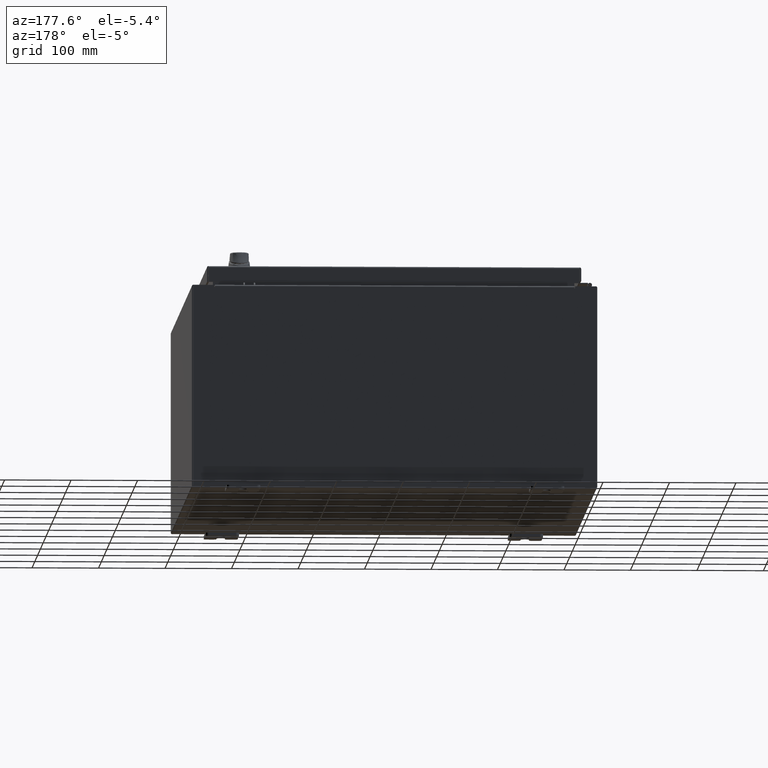
[diagram: clean part render]
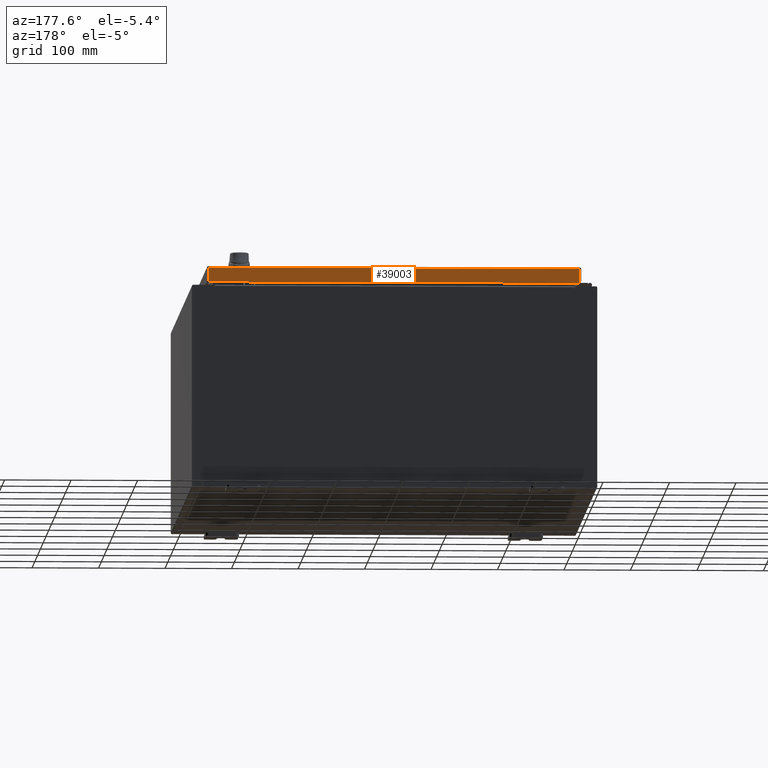
[diagram: same view with one face highlighted and labeled with its STEP entity id]
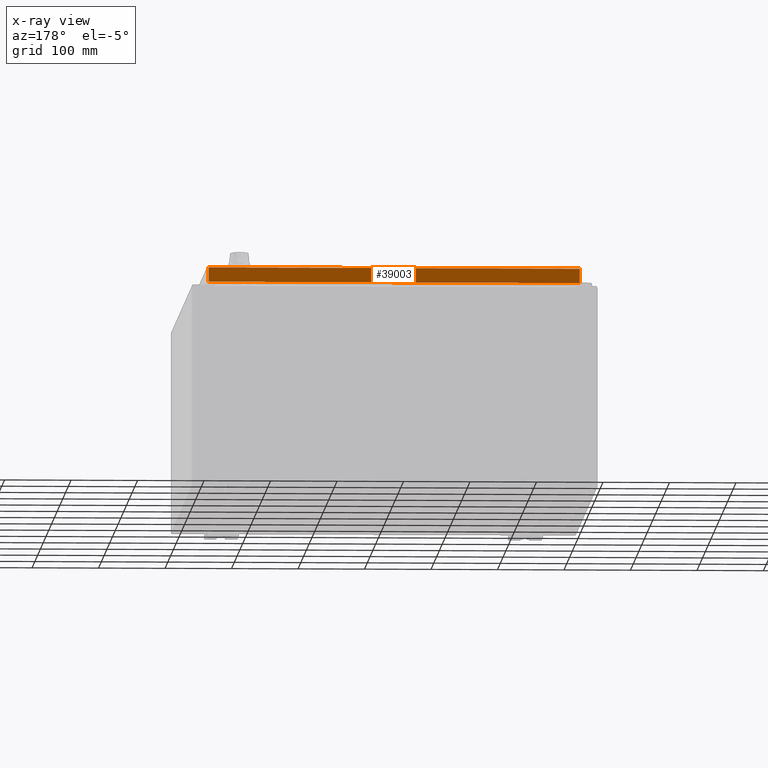
[diagram: x-ray of the same camera — body ghosted, the highlighted face saturated]
A machine part, auxiliary view. The second image highlights one B-rep face of the part: STEP entity #39003.
The next image is the same camera in x-ray: the body ghosted, the highlighted face saturated — about 0% of this face is hidden behind the body in this view.
In plain terms, the highlighted planar face has unit normal (0, -1, -0).
Its self-contained STEP definition (entity closure, byte-faithful):
#5840 = AXIS2_PLACEMENT_3D ( 'NONE', #42341, #69610, #15412 ) ;
#9617 = CARTESIAN_POINT ( 'NONE',  ( 10.98915786437626700, 14.09399999999999900, -0.08770000000000008300 ) ) ;
#10952 = EDGE_CURVE ( 'NONE', #12809, #40409, #18586, .T. ) ;
#12809 = VERTEX_POINT ( 'NONE', #9617 ) ;
#15412 = DIRECTION ( 'NONE',  ( 0.0000000000000000000, 2.532419924601858200E-015, -1.000000000000000000 ) ) ;
#15917 = CARTESIAN_POINT ( 'NONE',  ( -10.98915786437626700, 14.09399999999999900, -0.08770000000000008300 ) ) ;
#16169 = ORIENTED_EDGE ( 'NONE', *, *, #60332, .F. ) ;
#16761 = VECTOR ( 'NONE', #113386, 39.37007874015748100 ) ;
#18586 = LINE ( 'NONE', #112473, #112015 ) ;
#18883 = VECTOR ( 'NONE', #112183, 39.37007874015748100 ) ;
#18990 = FACE_OUTER_BOUND ( 'NONE', #45059, .T. ) ;
#21520 = VECTOR ( 'NONE', #86886, 39.37007874015748100 ) ;
#39003 = ADVANCED_FACE ( 'NONE', ( #18990 ), #60541, .F. ) ;
#40409 = VERTEX_POINT ( 'NONE', #15917 ) ;
#41895 = ORIENTED_EDGE ( 'NONE', *, *, #61820, .F. ) ;
#42341 = CARTESIAN_POINT ( 'NONE',  ( -4.400835781423494800E-030, 14.09399999999999900, 3.595274007335016100E-014 ) ) ;
#45059 = EDGE_LOOP ( 'NONE', ( #52333, #112590, #41895, #16169 ) ) ;
#48939 = CARTESIAN_POINT ( 'NONE',  ( -10.98915786437626900, 14.09399999999999900, -0.07469999999999980800 ) ) ;
#52333 = ORIENTED_EDGE ( 'NONE', *, *, #10952, .F. ) ;
#58340 = DIRECTION ( 'NONE',  ( -1.000000000000000000, -3.122488847327583000E-031, -7.817847125977018100E-046 ) ) ;
#60023 = CARTESIAN_POINT ( 'NONE',  ( -11.07799999999999900, 14.09400000000000100, -0.9377000000000025300 ) ) ;
#60332 = EDGE_CURVE ( 'NONE', #40409, #65850, #88254, .T. ) ;
#60541 = PLANE ( 'NONE',  #5840 ) ;
#61820 = EDGE_CURVE ( 'NONE', #65850, #104623, #72470, .T. ) ;
#65850 = VERTEX_POINT ( 'NONE', #102705 ) ;
#65952 = EDGE_CURVE ( 'NONE', #12809, #104623, #113013, .T. ) ;
#69610 = DIRECTION ( 'NONE',  ( 3.122488847327582500E-031, -1.000000000000000000, -2.532419924601858200E-015 ) ) ;
#72470 = LINE ( 'NONE', #60023, #21520 ) ;
#86886 = DIRECTION ( 'NONE',  ( 1.000000000000000000, -4.379057701015054300E-047, 1.233005954894504400E-016 ) ) ;
#88254 = LINE ( 'NONE', #48939, #18883 ) ;
#102705 = CARTESIAN_POINT ( 'NONE',  ( -10.98915786437626900, 14.09400000000000100, -0.9377000000000025300 ) ) ;
#104277 = CARTESIAN_POINT ( 'NONE',  ( 10.98915786437626900, 14.09399999999999900, 3.595274007335016100E-014 ) ) ;
#104623 = VERTEX_POINT ( 'NONE', #113312 ) ;
#112015 = VECTOR ( 'NONE', #58340, 39.37007874015748100 ) ;
#112183 = DIRECTION ( 'NONE',  ( -0.0000000000000000000, 2.532419924601858200E-015, -1.000000000000000000 ) ) ;
#112473 = CARTESIAN_POINT ( 'NONE',  ( -11.07799999999999900, 14.09399999999999900, -0.08770000000000008300 ) ) ;
#112590 = ORIENTED_EDGE ( 'NONE', *, *, #65952, .T. ) ;
#113013 = LINE ( 'NONE', #104277, #16761 ) ;
#113312 = CARTESIAN_POINT ( 'NONE',  ( 10.98915786437626700, 14.09400000000000100, -0.9376999999999997600 ) ) ;
#113386 = DIRECTION ( 'NONE',  ( 0.0000000000000000000, 2.532419924601858200E-015, -1.000000000000000000 ) ) ;